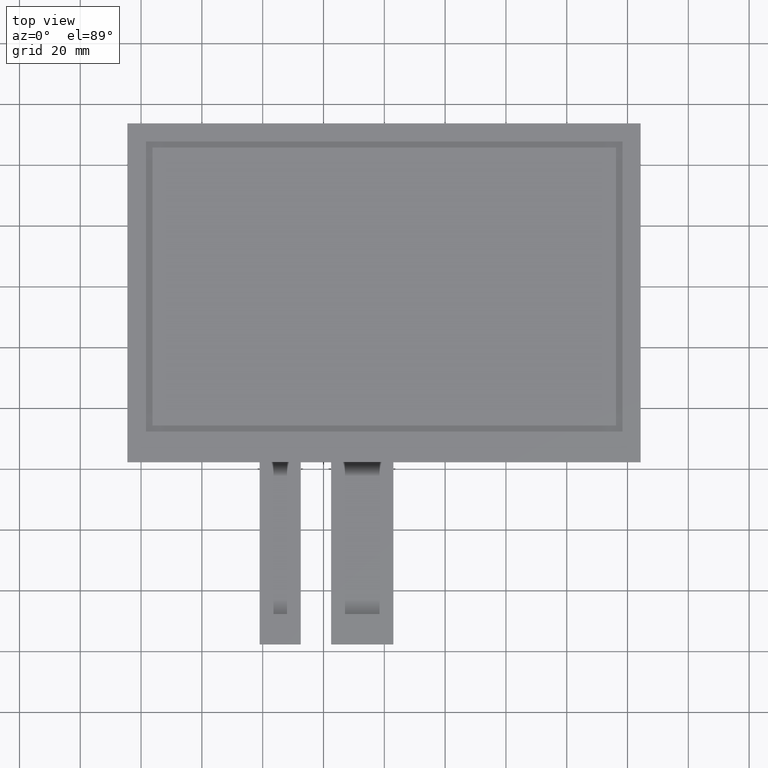
[diagram: clean part render]
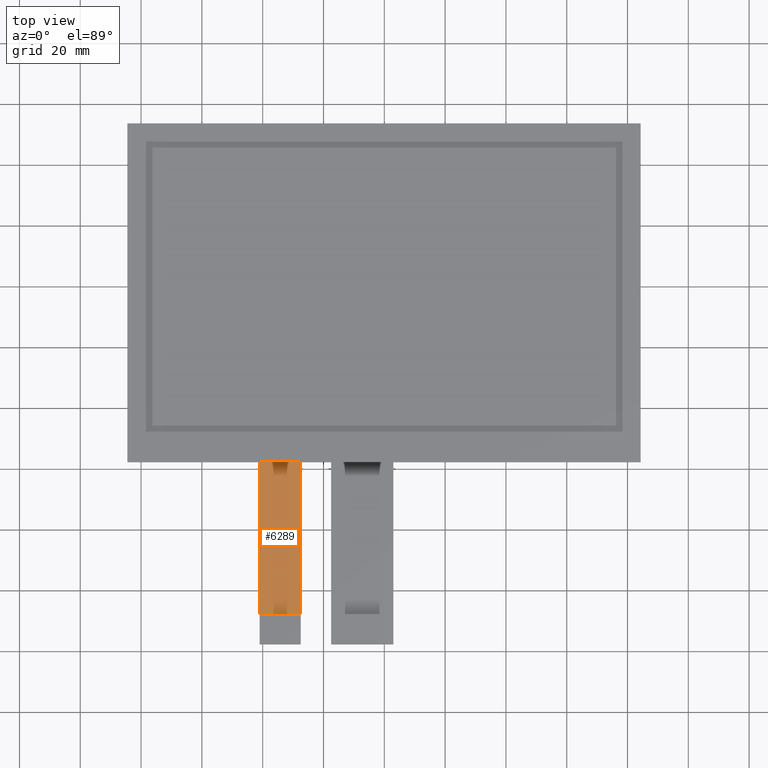
[diagram: same view with one face highlighted and labeled with its STEP entity id]
A machine part, top view. The second image highlights one B-rep face of the part: STEP entity #6289.
In plain terms, the highlighted planar face has unit normal (0, 0, 1).
Its self-contained STEP definition (entity closure, byte-faithful):
#351=PLANE('',#6619);
#653=FACE_OUTER_BOUND('',#955,.T.);
#955=EDGE_LOOP('',(#5913,#5914,#5915,#5916));
#1094=LINE('',#8385,#1974);
#1803=LINE('',#9812,#2683);
#1815=LINE('',#9835,#2695);
#1819=LINE('',#9843,#2699);
#1974=VECTOR('',#6774,10.);
#2683=VECTOR('',#8033,10.);
#2695=VECTOR('',#8055,10.);
#2699=VECTOR('',#8067,10.);
#2862=VERTEX_POINT('',#8382);
#2863=VERTEX_POINT('',#8384);
#3305=VERTEX_POINT('',#9809);
#3306=VERTEX_POINT('',#9811);
#3458=EDGE_CURVE('',#2863,#2862,#1094,.T.);
#4171=EDGE_CURVE('',#3306,#3305,#1803,.T.);
#4183=EDGE_CURVE('',#3305,#2863,#1815,.T.);
#4187=EDGE_CURVE('',#3306,#2862,#1819,.T.);
#5913=ORIENTED_EDGE('',*,*,#4183,.T.);
#5914=ORIENTED_EDGE('',*,*,#3458,.T.);
#5915=ORIENTED_EDGE('',*,*,#4187,.F.);
#5916=ORIENTED_EDGE('',*,*,#4171,.T.);
#6289=ADVANCED_FACE('',(#653),#351,.T.);
#6619=AXIS2_PLACEMENT_3D('',#9842,#8065,#8066);
#6774=DIRECTION('',(-3.70074341541719E-16,1.,0.));
#8033=DIRECTION('',(5.9211894646675E-16,-1.,0.));
#8055=DIRECTION('',(1.,0.,0.));
#8065=DIRECTION('center_axis',(0.,0.,1.));
#8066=DIRECTION('ref_axis',(1.,0.,0.));
#8067=DIRECTION('',(1.,1.05234409917076E-16,0.));
#8382=CARTESIAN_POINT('',(-27.4999999999999,-57.72,-1.1));
#8384=CARTESIAN_POINT('',(-27.4999999999999,-107.72,-1.1));
#8385=CARTESIAN_POINT('',(-27.4999999999999,-117.72,-1.1));
#9809=CARTESIAN_POINT('',(-41.,-107.72,-1.1));
#9811=CARTESIAN_POINT('',(-41.,-57.72,-1.1));
#9812=CARTESIAN_POINT('',(-41.,-57.72,-1.1));
#9835=CARTESIAN_POINT('',(-30.8749999999999,-107.72,-1.1));
#9842=CARTESIAN_POINT('Origin',(-34.25,-87.72,-1.1));
#9843=CARTESIAN_POINT('',(25.025,-57.72,-1.1));